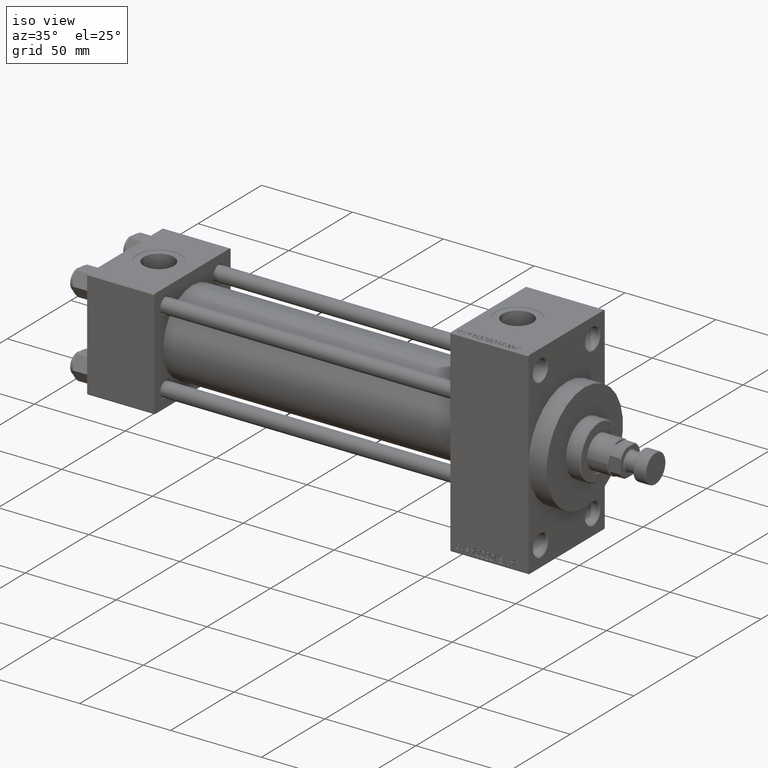
[diagram: clean part render]
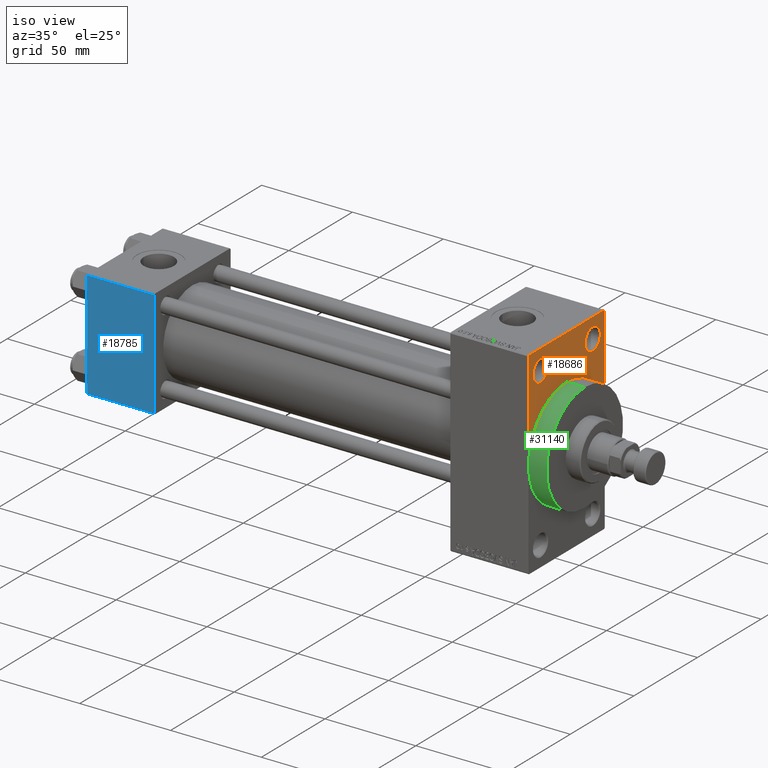
[diagram: same view with three faces highlighted in distinct colors, each labeled with its STEP entity id]
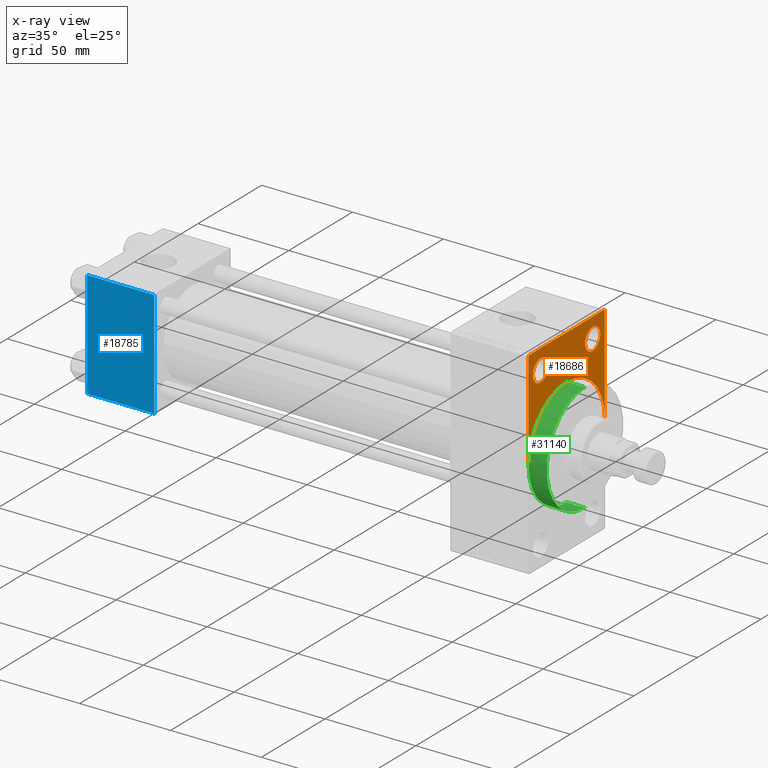
[diagram: x-ray of the same camera — body ghosted, the three highlighted faces saturated]
A machine part, iso view with three faces highlighted in distinct colors.
The next image is the same camera in x-ray (body ghosted, the three faces saturated) — at least one of them is partly hidden behind the body in this view.
Their STEP definitions:

[orange] entity #18686 — the highlighted planar face has unit normal (-1, 0, 0).
#61 = ORIENTED_EDGE ( 'NONE', *, *, #8310, .F. ) ;
#103 = ORIENTED_EDGE ( 'NONE', *, *, #7862, .T. ) ;
#1077 = ORIENTED_EDGE ( 'NONE', *, *, #45787, .T. ) ;
#1654 = DIRECTION ( 'NONE',  ( 0.000000000000000000, -1.000000000000000000, 1.156482317317871478E-16 ) ) ;
#1880 = DIRECTION ( 'NONE',  ( -0.000000000000000000, 0.000000000000000000, 1.000000000000000000 ) ) ;
#2036 = CARTESIAN_POINT ( 'NONE',  ( 243.0000000000000000, -30.00000000000000000, 0.000000000000000000 ) ) ;
#2555 = VECTOR ( 'NONE', #7230, 1000.000000000000000 ) ;
#3761 = ORIENTED_EDGE ( 'NONE', *, *, #49546, .T. ) ;
#4077 = AXIS2_PLACEMENT_3D ( 'NONE', #10376, #25709, #44577 ) ;
#5962 = DIRECTION ( 'NONE',  ( 0.000000000000000000, 0.000000000000000000, -1.000000000000000000 ) ) ;
#6846 = VECTOR ( 'NONE', #22749, 1000.000000000000000 ) ;
#6994 = CARTESIAN_POINT ( 'NONE',  ( 243.0000000000000000, 0.000000000000000000, 0.000000000000000000 ) ) ;
#7021 = CARTESIAN_POINT ( 'NONE',  ( 243.0000000000000000, 30.00000000000000000, 0.000000000000000000 ) ) ;
#7216 = CARTESIAN_POINT ( 'NONE',  ( 243.0000000000000000, -20.50000000000000000, 37.50000000000002132 ) ) ;
#7230 = DIRECTION ( 'NONE',  ( 0.000000000000000000, -0.7071067811865279218, 0.7071067811865672237 ) ) ;
#7299 = AXIS2_PLACEMENT_3D ( 'NONE', #27549, #7448, #38148 ) ;
#7382 = DIRECTION ( 'NONE',  ( 0.000000000000000000, 0.000000000000000000, 1.000000000000000000 ) ) ;
#7448 = DIRECTION ( 'NONE',  ( -1.000000000000000000, 0.000000000000000000, -0.000000000000000000 ) ) ;
#7862 = EDGE_CURVE ( 'NONE', #36828, #41730, #8906, .T. ) ;
#8310 = EDGE_CURVE ( 'NONE', #11756, #42744, #8875, .T. ) ;
#8338 = AXIS2_PLACEMENT_3D ( 'NONE', #31563, #9412, #1880 ) ;
#8415 = FACE_OUTER_BOUND ( 'NONE', #18417, .T. ) ;
#8590 = EDGE_CURVE ( 'NONE', #41730, #36828, #24971, .T. ) ;
#8837 = VERTEX_POINT ( 'NONE', #42340 ) ;
#8875 = CIRCLE ( 'NONE', #16939, 30.00000000000000000 ) ;
#8906 = CIRCLE ( 'NONE', #4077, 5.999999999999977796 ) ;
#9412 = DIRECTION ( 'NONE',  ( -1.000000000000000000, 0.000000000000000000, -0.000000000000000000 ) ) ;
#10376 = CARTESIAN_POINT ( 'NONE',  ( 243.0000000000000000, 20.50000000000000000, 43.50000000000000000 ) ) ;
#11434 = LINE ( 'NONE', #20636, #6846 ) ;
#11538 = ORIENTED_EDGE ( 'NONE', *, *, #34831, .T. ) ;
#11756 = VERTEX_POINT ( 'NONE', #44765 ) ;
#12205 = FACE_BOUND ( 'NONE', #31387, .T. ) ;
#13188 = ORIENTED_EDGE ( 'NONE', *, *, #37690, .T. ) ;
#13516 = CARTESIAN_POINT ( 'NONE',  ( 243.0000000000000000, 29.49999999999999645, 54.49999999999999289 ) ) ;
#13797 = EDGE_LOOP ( 'NONE', ( #13188, #3761 ) ) ;
#14036 = CARTESIAN_POINT ( 'NONE',  ( 243.0000000000000000, -29.50000000000000355, 54.50000000000000000 ) ) ;
#15546 = VERTEX_POINT ( 'NONE', #29622 ) ;
#15697 = DIRECTION ( 'NONE',  ( -1.000000000000000000, 0.000000000000000000, -0.000000000000000000 ) ) ;
#16186 = ORIENTED_EDGE ( 'NONE', *, *, #37470, .T. ) ;
#16361 = VERTEX_POINT ( 'NONE', #42672 ) ;
#16939 = AXIS2_PLACEMENT_3D ( 'NONE', #20556, #28352, #5962 ) ;
#18417 = EDGE_LOOP ( 'NONE', ( #32005, #16186, #1077, #61, #36943, #34925, #11538 ) ) ;
#18686 = ADVANCED_FACE ( 'NONE', ( #38609, #12205, #8415 ), #23768, .F. ) ;
#20274 = VECTOR ( 'NONE', #34229, 1000.000000000000114 ) ;
#20556 = CARTESIAN_POINT ( 'NONE',  ( 243.0000000000000000, 0.000000000000000000, 0.000000000000000000 ) ) ;
#20636 = CARTESIAN_POINT ( 'NONE',  ( 243.0000000000000000, -30.00000000000000000, 54.50000000000000000 ) ) ;
#20807 = VERTEX_POINT ( 'NONE', #7021 ) ;
#21005 = CARTESIAN_POINT ( 'NONE',  ( 243.0000000000000000, 29.99999999999999645, 54.49999999999999289 ) ) ;
#22212 = CIRCLE ( 'NONE', #48710, 5.999999999999977796 ) ;
#22587 = DIRECTION ( 'NONE',  ( 0.000000000000000000, 0.000000000000000000, -1.000000000000000000 ) ) ;
#22639 = LINE ( 'NONE', #37991, #20274 ) ;
#22749 = DIRECTION ( 'NONE',  ( 0.000000000000000000, 0.000000000000000000, -1.000000000000000000 ) ) ;
#23768 = PLANE ( 'NONE',  #8338 ) ;
#24645 = AXIS2_PLACEMENT_3D ( 'NONE', #6994, #29885, #22587 ) ;
#24971 = CIRCLE ( 'NONE', #7299, 5.999999999999977796 ) ;
#25036 = LINE ( 'NONE', #21005, #27833 ) ;
#25072 = EDGE_CURVE ( 'NONE', #48001, #46011, #25036, .T. ) ;
#25709 = DIRECTION ( 'NONE',  ( -1.000000000000000000, 0.000000000000000000, -0.000000000000000000 ) ) ;
#26912 = ORIENTED_EDGE ( 'NONE', *, *, #8590, .T. ) ;
#27549 = CARTESIAN_POINT ( 'NONE',  ( 243.0000000000000000, 20.50000000000000000, 43.50000000000000000 ) ) ;
#27833 = VECTOR ( 'NONE', #1654, 1000.000000000000000 ) ;
#28352 = DIRECTION ( 'NONE',  ( 1.000000000000000000, 0.000000000000000000, 0.000000000000000000 ) ) ;
#29024 = LINE ( 'NONE', #47891, #45119 ) ;
#29113 = EDGE_CURVE ( 'NONE', #20807, #11756, #33519, .T. ) ;
#29622 = CARTESIAN_POINT ( 'NONE',  ( 243.0000000000000000, -30.00000000000000000, 54.00000000000002842 ) ) ;
#29627 = CARTESIAN_POINT ( 'NONE',  ( 243.0000000000000000, -20.50000000000000000, 43.50000000000000000 ) ) ;
#29885 = DIRECTION ( 'NONE',  ( 1.000000000000000000, 0.000000000000000000, 0.000000000000000000 ) ) ;
#31387 = EDGE_LOOP ( 'NONE', ( #103, #26912 ) ) ;
#31543 = EDGE_CURVE ( 'NONE', #8837, #20807, #29024, .T. ) ;
#31563 = CARTESIAN_POINT ( 'NONE',  ( 243.0000000000000000, 0.000000000000000000, 0.000000000000000000 ) ) ;
#32005 = ORIENTED_EDGE ( 'NONE', *, *, #25072, .T. ) ;
#33411 = DIRECTION ( 'NONE',  ( -1.000000000000000000, 0.000000000000000000, -0.000000000000000000 ) ) ;
#33519 = CIRCLE ( 'NONE', #24645, 30.00000000000000000 ) ;
#34169 = LINE ( 'NONE', #41693, #2555 ) ;
#34229 = DIRECTION ( 'NONE',  ( -0.000000000000000000, -0.7071067811865647812, -0.7071067811865302533 ) ) ;
#34831 = EDGE_CURVE ( 'NONE', #8837, #48001, #34169, .T. ) ;
#34925 = ORIENTED_EDGE ( 'NONE', *, *, #31543, .F. ) ;
#36828 = VERTEX_POINT ( 'NONE', #45134 ) ;
#36943 = ORIENTED_EDGE ( 'NONE', *, *, #29113, .F. ) ;
#37423 = DIRECTION ( 'NONE',  ( 0.000000000000000000, 0.000000000000000000, 1.000000000000000000 ) ) ;
#37470 = EDGE_CURVE ( 'NONE', #46011, #15546, #22639, .T. ) ;
#37690 = EDGE_CURVE ( 'NONE', #46141, #16361, #43606, .T. ) ;
#37991 = CARTESIAN_POINT ( 'NONE',  ( 243.0000000000000000, -30.00000000000000000, 54.00000000000002842 ) ) ;
#38148 = DIRECTION ( 'NONE',  ( 0.000000000000000000, 0.000000000000000000, 1.000000000000000000 ) ) ;
#38609 = FACE_BOUND ( 'NONE', #13797, .T. ) ;
#41693 = CARTESIAN_POINT ( 'NONE',  ( 243.0000000000000000, 29.49999999999999645, 54.49999999999999289 ) ) ;
#41730 = VERTEX_POINT ( 'NONE', #48308 ) ;
#41839 = CARTESIAN_POINT ( 'NONE',  ( 243.0000000000000000, -20.50000000000000000, 43.50000000000000000 ) ) ;
#42013 = AXIS2_PLACEMENT_3D ( 'NONE', #29627, #33411, #37423 ) ;
#42340 = CARTESIAN_POINT ( 'NONE',  ( 243.0000000000000000, 29.99999999999999645, 53.99999999999996447 ) ) ;
#42672 = CARTESIAN_POINT ( 'NONE',  ( 243.0000000000000000, -20.50000000000000000, 49.49999999999997158 ) ) ;
#42744 = VERTEX_POINT ( 'NONE', #2036 ) ;
#43606 = CIRCLE ( 'NONE', #42013, 5.999999999999977796 ) ;
#44353 = DIRECTION ( 'NONE',  ( 0.000000000000000000, 0.000000000000000000, -1.000000000000000000 ) ) ;
#44577 = DIRECTION ( 'NONE',  ( 0.000000000000000000, 0.000000000000000000, 1.000000000000000000 ) ) ;
#44765 = CARTESIAN_POINT ( 'NONE',  ( 243.0000000000000000, 0.000000000000000000, 30.00000000000000000 ) ) ;
#45119 = VECTOR ( 'NONE', #44353, 1000.000000000000000 ) ;
#45134 = CARTESIAN_POINT ( 'NONE',  ( 243.0000000000000000, 20.50000000000000000, 37.50000000000002132 ) ) ;
#45787 = EDGE_CURVE ( 'NONE', #15546, #42744, #11434, .T. ) ;
#46011 = VERTEX_POINT ( 'NONE', #14036 ) ;
#46141 = VERTEX_POINT ( 'NONE', #7216 ) ;
#47891 = CARTESIAN_POINT ( 'NONE',  ( 243.0000000000000000, 29.99999999999999645, 54.49999999999999289 ) ) ;
#48001 = VERTEX_POINT ( 'NONE', #13516 ) ;
#48308 = CARTESIAN_POINT ( 'NONE',  ( 243.0000000000000000, 20.50000000000000000, 49.49999999999997158 ) ) ;
#48710 = AXIS2_PLACEMENT_3D ( 'NONE', #41839, #15697, #7382 ) ;
#49546 = EDGE_CURVE ( 'NONE', #16361, #46141, #22212, .T. ) ;

[blue] entity #18785 — the highlighted planar face has unit normal (0, 1, 0).
#860 = VERTEX_POINT ( 'NONE', #42749 ) ;
#2317 = EDGE_CURVE ( 'NONE', #16533, #6378, #33374, .T. ) ;
#2741 = DIRECTION ( 'NONE',  ( 0.000000000000000000, 0.000000000000000000, -1.000000000000000000 ) ) ;
#3518 = ORIENTED_EDGE ( 'NONE', *, *, #2317, .T. ) ;
#5403 = FACE_OUTER_BOUND ( 'NONE', #7237, .T. ) ;
#6378 = VERTEX_POINT ( 'NONE', #11254 ) ;
#7020 = ORIENTED_EDGE ( 'NONE', *, *, #17130, .F. ) ;
#7237 = EDGE_LOOP ( 'NONE', ( #9587, #3518, #7020, #23104 ) ) ;
#7520 = VECTOR ( 'NONE', #2741, 1000.000000000000000 ) ;
#8277 = EDGE_CURVE ( 'NONE', #37079, #16533, #13276, .T. ) ;
#9587 = ORIENTED_EDGE ( 'NONE', *, *, #8277, .T. ) ;
#11254 = CARTESIAN_POINT ( 'NONE',  ( 37.00000000000000000, -30.00000000000000000, -29.50000000000001776 ) ) ;
#13276 = LINE ( 'NONE', #48203, #45865 ) ;
#13767 = DIRECTION ( 'NONE',  ( 0.000000000000000000, 0.000000000000000000, -1.000000000000000000 ) ) ;
#13991 = LINE ( 'NONE', #25293, #22073 ) ;
#16533 = VERTEX_POINT ( 'NONE', #36863 ) ;
#17130 = EDGE_CURVE ( 'NONE', #860, #6378, #20602, .T. ) ;
#18186 = CARTESIAN_POINT ( 'NONE',  ( 0.000000000000000000, -30.00000000000000000, 29.49999999999999289 ) ) ;
#18212 = CARTESIAN_POINT ( 'NONE',  ( 37.00000000000000000, -30.00000000000000000, 29.99999999999999289 ) ) ;
#18785 = ADVANCED_FACE ( 'NONE', ( #5403 ), #36074, .F. ) ;
#20602 = LINE ( 'NONE', #35952, #7520 ) ;
#21805 = VECTOR ( 'NONE', #48707, 1000.000000000000000 ) ;
#22073 = VECTOR ( 'NONE', #40625, 1000.000000000000000 ) ;
#23104 = ORIENTED_EDGE ( 'NONE', *, *, #41443, .T. ) ;
#25213 = AXIS2_PLACEMENT_3D ( 'NONE', #18212, #30022, #37314 ) ;
#25293 = CARTESIAN_POINT ( 'NONE',  ( 37.00000000000000000, -30.00000000000000000, 29.49999999999999289 ) ) ;
#30022 = DIRECTION ( 'NONE',  ( -0.000000000000000000, 1.000000000000000000, 0.000000000000000000 ) ) ;
#33374 = LINE ( 'NONE', #44918, #21805 ) ;
#35952 = CARTESIAN_POINT ( 'NONE',  ( 37.00000000000000000, -30.00000000000000000, 29.99999999999999289 ) ) ;
#36074 = PLANE ( 'NONE',  #25213 ) ;
#36863 = CARTESIAN_POINT ( 'NONE',  ( 0.000000000000000000, -30.00000000000000000, -29.50000000000001776 ) ) ;
#37079 = VERTEX_POINT ( 'NONE', #18186 ) ;
#37314 = DIRECTION ( 'NONE',  ( 0.000000000000000000, -0.000000000000000000, 1.000000000000000000 ) ) ;
#40625 = DIRECTION ( 'NONE',  ( -1.000000000000000000, 0.000000000000000000, 0.000000000000000000 ) ) ;
#41443 = EDGE_CURVE ( 'NONE', #860, #37079, #13991, .T. ) ;
#42749 = CARTESIAN_POINT ( 'NONE',  ( 37.00000000000000000, -30.00000000000000000, 29.49999999999999289 ) ) ;
#44918 = CARTESIAN_POINT ( 'NONE',  ( 37.00000000000000000, -30.00000000000000000, -29.50000000000001776 ) ) ;
#45865 = VECTOR ( 'NONE', #13767, 1000.000000000000000 ) ;
#48203 = CARTESIAN_POINT ( 'NONE',  ( 0.000000000000000000, -30.00000000000000000, 29.99999999999999289 ) ) ;
#48707 = DIRECTION ( 'NONE',  ( 1.000000000000000000, 0.000000000000000000, 0.000000000000000000 ) ) ;

[green] entity #31140 — the highlighted cylindrical surface (partial cylindrical patch) has radius 30 mm, axis along (-1, -0, -0).
#1567 = EDGE_CURVE ( 'NONE', #22947, #15804, #7337, .T. ) ;
#2036 = CARTESIAN_POINT ( 'NONE',  ( 243.0000000000000000, -30.00000000000000000, 0.000000000000000000 ) ) ;
#3867 = CARTESIAN_POINT ( 'NONE',  ( 253.0000000000000000, 0.000000000000000000, 30.00000000000000000 ) ) ;
#4715 = DIRECTION ( 'NONE',  ( 0.000000000000000000, 0.000000000000000000, 1.000000000000000000 ) ) ;
#5729 = AXIS2_PLACEMENT_3D ( 'NONE', #47830, #29462, #25188 ) ;
#5962 = DIRECTION ( 'NONE',  ( 0.000000000000000000, 0.000000000000000000, -1.000000000000000000 ) ) ;
#6050 = ORIENTED_EDGE ( 'NONE', *, *, #6155, .F. ) ;
#6155 = EDGE_CURVE ( 'NONE', #15804, #20543, #7768, .T. ) ;
#7337 = CIRCLE ( 'NONE', #5729, 30.00000000000000000 ) ;
#7768 = LINE ( 'NONE', #27141, #44961 ) ;
#8310 = EDGE_CURVE ( 'NONE', #11756, #42744, #8875, .T. ) ;
#8478 = CYLINDRICAL_SURFACE ( 'NONE', #12968, 30.00000000000000000 ) ;
#8842 = ORIENTED_EDGE ( 'NONE', *, *, #41811, .T. ) ;
#8875 = CIRCLE ( 'NONE', #16939, 30.00000000000000000 ) ;
#11355 = CARTESIAN_POINT ( 'NONE',  ( 243.0000000000000000, 3.673940397442059178E-15, -30.00000000000000000 ) ) ;
#11756 = VERTEX_POINT ( 'NONE', #44765 ) ;
#12030 = DIRECTION ( 'NONE',  ( 0.000000000000000000, 0.000000000000000000, -1.000000000000000000 ) ) ;
#12968 = AXIS2_PLACEMENT_3D ( 'NONE', #30208, #39166, #4715 ) ;
#15020 = CIRCLE ( 'NONE', #27846, 30.00000000000000000 ) ;
#15804 = VERTEX_POINT ( 'NONE', #22198 ) ;
#16939 = AXIS2_PLACEMENT_3D ( 'NONE', #20556, #28352, #5962 ) ;
#20543 = VERTEX_POINT ( 'NONE', #11355 ) ;
#20556 = CARTESIAN_POINT ( 'NONE',  ( 243.0000000000000000, 0.000000000000000000, 0.000000000000000000 ) ) ;
#22198 = CARTESIAN_POINT ( 'NONE',  ( 253.0000000000000000, 3.673940397442059178E-15, -30.00000000000000000 ) ) ;
#22947 = VERTEX_POINT ( 'NONE', #3867 ) ;
#25188 = DIRECTION ( 'NONE',  ( 0.000000000000000000, 0.000000000000000000, -1.000000000000000000 ) ) ;
#26876 = CARTESIAN_POINT ( 'NONE',  ( 243.0000000000000000, 0.000000000000000000, 0.000000000000000000 ) ) ;
#26922 = LINE ( 'NONE', #30951, #34942 ) ;
#27141 = CARTESIAN_POINT ( 'NONE',  ( 253.0000000000000000, 3.673940397442059178E-15, -30.00000000000000000 ) ) ;
#27599 = FACE_OUTER_BOUND ( 'NONE', #45987, .T. ) ;
#27846 = AXIS2_PLACEMENT_3D ( 'NONE', #26876, #38201, #12030 ) ;
#28352 = DIRECTION ( 'NONE',  ( 1.000000000000000000, 0.000000000000000000, 0.000000000000000000 ) ) ;
#29462 = DIRECTION ( 'NONE',  ( 1.000000000000000000, 0.000000000000000000, 0.000000000000000000 ) ) ;
#30208 = CARTESIAN_POINT ( 'NONE',  ( 253.0000000000000000, 0.000000000000000000, 0.000000000000000000 ) ) ;
#30951 = CARTESIAN_POINT ( 'NONE',  ( 253.0000000000000000, 0.000000000000000000, 30.00000000000000000 ) ) ;
#31140 = ADVANCED_FACE ( 'NONE', ( #27599 ), #8478, .T. ) ;
#32199 = ORIENTED_EDGE ( 'NONE', *, *, #48753, .T. ) ;
#34942 = VECTOR ( 'NONE', #45778, 1000.000000000000000 ) ;
#37570 = ORIENTED_EDGE ( 'NONE', *, *, #1567, .F. ) ;
#38201 = DIRECTION ( 'NONE',  ( 1.000000000000000000, 0.000000000000000000, 0.000000000000000000 ) ) ;
#39166 = DIRECTION ( 'NONE',  ( -1.000000000000000000, -0.000000000000000000, -0.000000000000000000 ) ) ;
#41811 = EDGE_CURVE ( 'NONE', #22947, #11756, #26922, .T. ) ;
#42744 = VERTEX_POINT ( 'NONE', #2036 ) ;
#42962 = DIRECTION ( 'NONE',  ( -1.000000000000000000, -0.000000000000000000, -0.000000000000000000 ) ) ;
#44765 = CARTESIAN_POINT ( 'NONE',  ( 243.0000000000000000, 0.000000000000000000, 30.00000000000000000 ) ) ;
#44961 = VECTOR ( 'NONE', #42962, 1000.000000000000000 ) ;
#45778 = DIRECTION ( 'NONE',  ( -1.000000000000000000, -0.000000000000000000, -0.000000000000000000 ) ) ;
#45987 = EDGE_LOOP ( 'NONE', ( #6050, #37570, #8842, #47606, #32199 ) ) ;
#47606 = ORIENTED_EDGE ( 'NONE', *, *, #8310, .T. ) ;
#47830 = CARTESIAN_POINT ( 'NONE',  ( 253.0000000000000000, 0.000000000000000000, 0.000000000000000000 ) ) ;
#48753 = EDGE_CURVE ( 'NONE', #42744, #20543, #15020, .T. ) ;